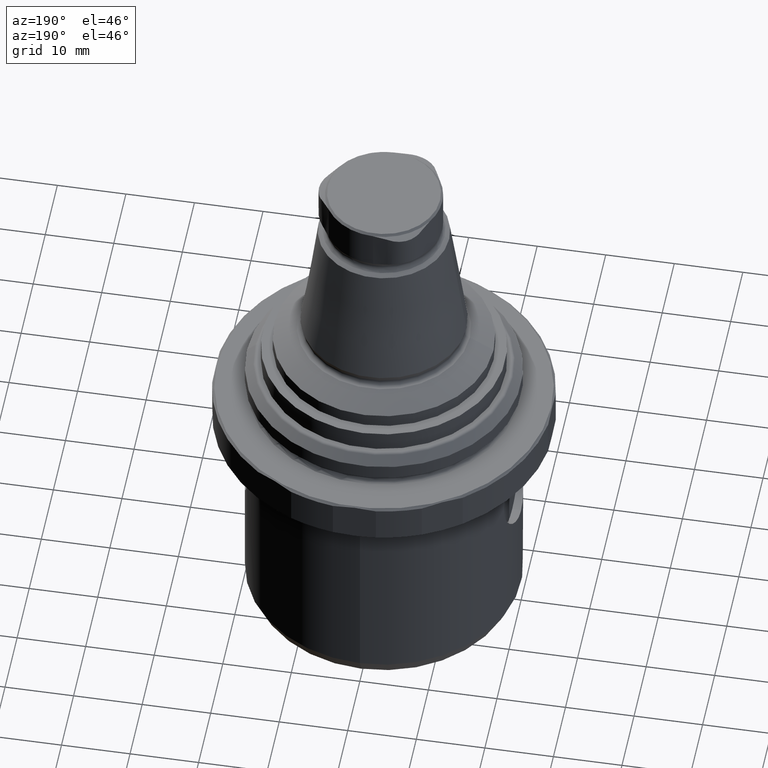
[diagram: clean part render]
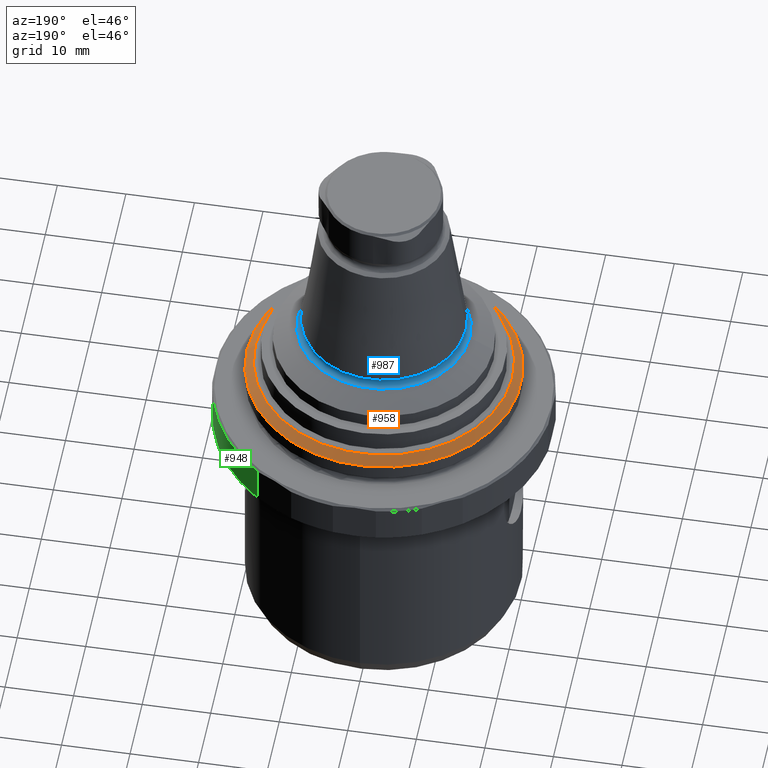
[diagram: same view with three faces highlighted in distinct colors, each labeled with its STEP entity id]
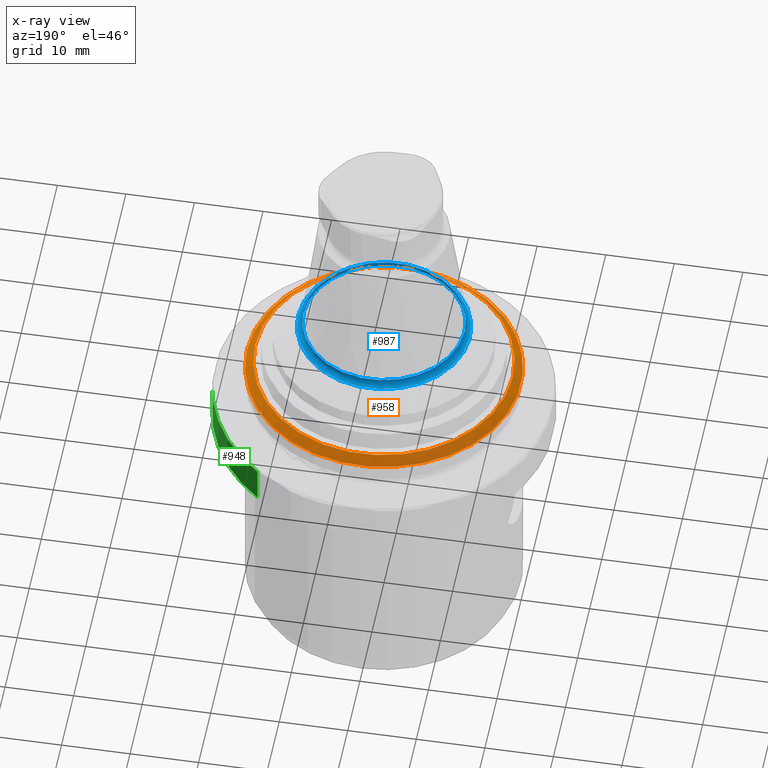
[diagram: x-ray of the same camera — body ghosted, the three highlighted faces saturated]
A machine part, auxiliary view with three faces highlighted in distinct colors.
The next image is the same camera in x-ray (body ghosted, the three faces saturated) — at least one of them is partly hidden behind the body in this view.
Their STEP definitions:

[orange] entity #958 — the highlighted conical surface has half-angle 45 deg.
#157=CONICAL_SURFACE('',#1071,18.7757350979542,0.785398163397448);
#295=ORIENTED_EDGE('',*,*,#489,.F.);
#296=ORIENTED_EDGE('',*,*,#490,.T.);
#489=EDGE_CURVE('',#601,#601,#677,.T.);
#490=EDGE_CURVE('',#602,#602,#678,.T.);
#601=VERTEX_POINT('',#1649);
#602=VERTEX_POINT('',#1652);
#677=CIRCLE('',#1070,20.);
#678=CIRCLE('',#1072,18.7757350979542);
#753=EDGE_LOOP('',(#295));
#754=EDGE_LOOP('',(#296));
#855=FACE_BOUND('',#753,.T.);
#856=FACE_BOUND('',#754,.T.);
#958=ADVANCED_FACE('',(#855,#856),#157,.T.);
#1070=AXIS2_PLACEMENT_3D('',#1648,#1276,#1277);
#1071=AXIS2_PLACEMENT_3D('',#1650,#1278,#1279);
#1072=AXIS2_PLACEMENT_3D('',#1651,#1280,#1281);
#1276=DIRECTION('',(1.1985897436163E-16,5.68031218956752E-33,-1.));
#1277=DIRECTION('',(1.,-2.71836589696428E-16,1.1985897436163E-16));
#1278=DIRECTION('',(1.1985897436163E-16,5.68031218956752E-33,-1.));
#1279=DIRECTION('',(1.,-2.71836589696428E-16,1.1985897436163E-16));
#1280=DIRECTION('',(1.1985897436163E-16,5.68031218956752E-33,-1.));
#1281=DIRECTION('',(1.,-2.71836589696428E-16,1.1985897436163E-16));
#1648=CARTESIAN_POINT('',(1.07697956228498E-15,6.13264751873343E-33,-6.9937822173509));
#1649=CARTESIAN_POINT('',(20.,-5.43673179392856E-15,-6.9937822173509));
#1650=CARTESIAN_POINT('',(9.3024042677882E-16,-8.21559327617271E-34,-5.76951731530506));
#1651=CARTESIAN_POINT('',(9.3024042677882E-16,-8.21559327617271E-34,-5.76951731530506));
#1652=CARTESIAN_POINT('',(18.7757350979542,-5.10393179807139E-15,-5.76951731530506));

[blue] entity #987 — the highlighted toroidal blend (fillet) surface has major radius 12.535 mm and minor (blend) radius 0.8 mm.
#80=TOROIDAL_SURFACE('',#1122,12.535,0.8);
#410=ORIENTED_EDGE('',*,*,#547,.T.);
#411=ORIENTED_EDGE('',*,*,#548,.F.);
#547=EDGE_CURVE('',#641,#641,#699,.T.);
#548=EDGE_CURVE('',#642,#642,#700,.T.);
#641=VERTEX_POINT('',#1854);
#642=VERTEX_POINT('',#1857);
#699=CIRCLE('',#1121,11.7832459033713);
#700=CIRCLE('',#1123,12.5358983848623);
#792=EDGE_LOOP('',(#410));
#793=EDGE_LOOP('',(#411));
#894=FACE_BOUND('',#792,.T.);
#895=FACE_BOUND('',#793,.T.);
#987=ADVANCED_FACE('',(#894,#895),#80,.F.);
#1121=AXIS2_PLACEMENT_3D('',#1853,#1390,#1391);
#1122=AXIS2_PLACEMENT_3D('',#1855,#1392,#1393);
#1123=AXIS2_PLACEMENT_3D('',#1856,#1394,#1395);
#1390=DIRECTION('',(1.22464605849178E-16,1.51929083932157E-64,-1.));
#1391=DIRECTION('',(-1.,6.12303176911188E-17,-1.22464605849178E-16));
#1392=DIRECTION('',(1.22464605849178E-16,1.51929083932157E-64,-1.));
#1393=DIRECTION('',(-1.,6.12303176911188E-17,-1.22464605849178E-16));
#1394=DIRECTION('',(1.22464605849178E-16,1.51929083932157E-64,-1.));
#1395=DIRECTION('',(-1.,6.12303176911188E-17,-1.22464605849178E-16));
#1853=CARTESIAN_POINT('',(-3.02930360728674E-16,-3.75814153661885E-64,2.47361561022578));
#1854=CARTESIAN_POINT('',(-11.7832459033713,7.21491890095998E-16,2.47361561022578));
#1855=CARTESIAN_POINT('',(-2.69422071092788E-16,-3.34243908012434E-64,2.19999949556524));
#1856=CARTESIAN_POINT('',(-1.71450448188849E-16,-2.12700717505019E-64,1.4));
#1857=CARTESIAN_POINT('',(-12.5358983848623,7.67577040648699E-16,1.4));

[green] entity #948 — the highlighted cylindrical surface (partial cylindrical patch) has radius 24.7 mm, axis along (0, 0, -1).
#31=LINE('',#1612,#59);
#32=LINE('',#1616,#60);
#59=VECTOR('',#1239,1000.);
#60=VECTOR('',#1244,1000.);
#131=CYLINDRICAL_SURFACE('',#1054,24.7);
#250=ORIENTED_EDGE('',*,*,#477,.F.);
#251=ORIENTED_EDGE('',*,*,#478,.T.);
#252=ORIENTED_EDGE('',*,*,#452,.T.);
#253=ORIENTED_EDGE('',*,*,#476,.T.);
#452=EDGE_CURVE('',#581,#580,#665,.T.);
#476=EDGE_CURVE('',#580,#593,#31,.T.);
#477=EDGE_CURVE('',#594,#593,#671,.T.);
#478=EDGE_CURVE('',#594,#581,#32,.F.);
#580=VERTEX_POINT('',#1542);
#581=VERTEX_POINT('',#1544);
#593=VERTEX_POINT('',#1611);
#594=VERTEX_POINT('',#1615);
#665=CIRCLE('',#1037,24.7);
#671=CIRCLE('',#1055,24.7);
#738=EDGE_LOOP('',(#250,#251,#252,#253));
#840=FACE_BOUND('',#738,.T.);
#948=ADVANCED_FACE('',(#840),#131,.T.);
#1037=AXIS2_PLACEMENT_3D('',#1543,#1194,#1195);
#1054=AXIS2_PLACEMENT_3D('',#1613,#1240,#1241);
#1055=AXIS2_PLACEMENT_3D('',#1614,#1242,#1243);
#1194=DIRECTION('',(1.1985897436163E-16,5.68031218956752E-33,-1.));
#1195=DIRECTION('',(1.,-2.71836589696428E-16,1.1985897436163E-16));
#1239=DIRECTION('',(1.1985897436163E-16,5.68031218956752E-33,-1.));
#1240=DIRECTION('',(1.1985897436163E-16,5.68031218956752E-33,-1.));
#1241=DIRECTION('',(1.,-2.71836589696428E-16,1.1985897436163E-16));
#1242=DIRECTION('',(1.1985897436163E-16,5.68031218956752E-33,-1.));
#1243=DIRECTION('',(1.,-2.71836589696428E-16,1.1985897436163E-16));
#1244=DIRECTION('',(1.1985897436163E-16,5.68031218956752E-33,-1.));
#1542=CARTESIAN_POINT('',(24.5,3.13687742827155,-11.2937822173508));
#1543=CARTESIAN_POINT('',(1.59237315203997E-15,3.0557989933873E-32,-11.2937822173508));
#1544=CARTESIAN_POINT('',(14.9666155414412,19.649183678583,-11.2937822173508));
#1611=CARTESIAN_POINT('',(24.5,3.13687742827155,-16.6937822173509));
#1612=CARTESIAN_POINT('',(24.5,3.13687742827155,-10.9937822173509));
#1613=CARTESIAN_POINT('',(1.5564154597315E-15,2.88538962770035E-32,-10.9937822173509));
#1614=CARTESIAN_POINT('',(2.23961161359279E-15,6.12316757575384E-32,-16.6937822173509));
#1615=CARTESIAN_POINT('',(14.9666155414412,19.649183678583,-16.6937822173509));
#1616=CARTESIAN_POINT('',(14.9666155414412,19.649183678583,-10.9937822173509));